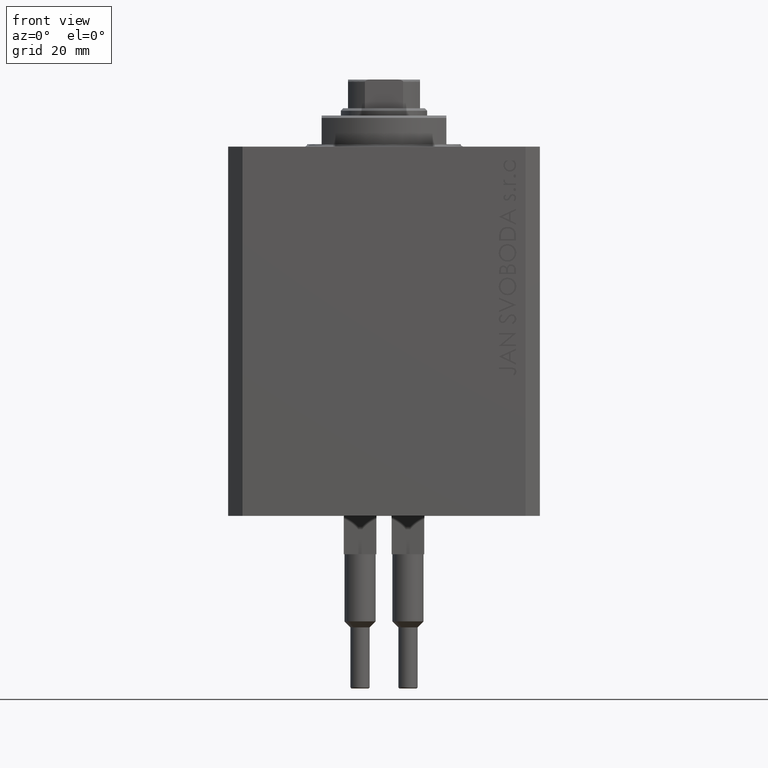
[diagram: clean part render]
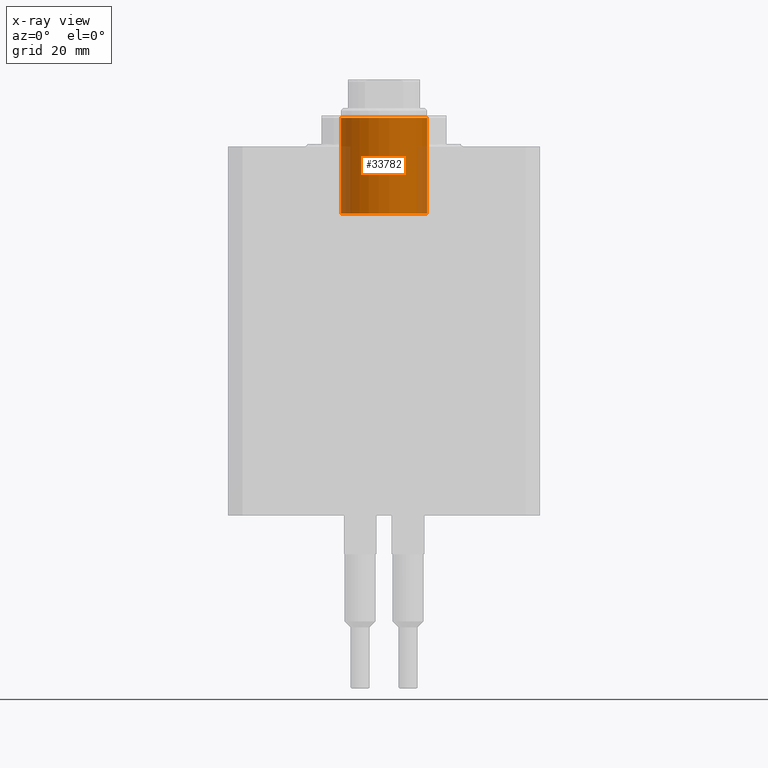
[diagram: x-ray — body ghosted, one internal face saturated and labeled with its STEP entity id]
A machine part, front view, then the same camera in x-ray: the body is ghosted and one INTERNAL B-rep face — a face not visible from any outside direction — is saturated and labeled: STEP entity #33782.
In plain terms, the highlighted cylindrical surface (partial cylindrical patch) has radius 9 mm, axis along (0, -0, 1).
Its self-contained STEP definition (entity closure, byte-faithful):
#3117 = LINE ( 'NONE', #24821, #42676 ) ;
#3484 = CARTESIAN_POINT ( 'NONE',  ( 9.000000000000000000, 1.102182119232617714E-15, -5.999999999999987566 ) ) ;
#3645 = CARTESIAN_POINT ( 'NONE',  ( -9.000000000000000000, 0.000000000000000000, 14.00000000000000178 ) ) ;
#4867 = DIRECTION ( 'NONE',  ( -1.000000000000000000, 0.000000000000000000, 0.000000000000000000 ) ) ;
#5873 = VERTEX_POINT ( 'NONE', #19109 ) ;
#6722 = AXIS2_PLACEMENT_3D ( 'NONE', #20147, #20386, #32066 ) ;
#7070 = EDGE_CURVE ( 'NONE', #15614, #8718, #45004, .T. ) ;
#7719 = EDGE_CURVE ( 'NONE', #23516, #8718, #3117, .T. ) ;
#8718 = VERTEX_POINT ( 'NONE', #20616 ) ;
#9660 = ORIENTED_EDGE ( 'NONE', *, *, #7070, .T. ) ;
#10282 = ORIENTED_EDGE ( 'NONE', *, *, #12177, .T. ) ;
#12177 = EDGE_CURVE ( 'NONE', #5873, #15614, #41277, .T. ) ;
#15614 = VERTEX_POINT ( 'NONE', #3484 ) ;
#19109 = CARTESIAN_POINT ( 'NONE',  ( 9.000000000000000000, 1.102182119232617714E-15, 14.00000000000000178 ) ) ;
#20147 = CARTESIAN_POINT ( 'NONE',  ( 0.000000000000000000, 0.000000000000000000, 14.00000000000000178 ) ) ;
#20386 = DIRECTION ( 'NONE',  ( -0.000000000000000000, -0.000000000000000000, -1.000000000000000000 ) ) ;
#20616 = CARTESIAN_POINT ( 'NONE',  ( -9.000000000000000000, 0.000000000000000000, -5.999999999999987566 ) ) ;
#23410 = DIRECTION ( 'NONE',  ( 0.000000000000000000, 0.000000000000000000, -1.000000000000000000 ) ) ;
#23516 = VERTEX_POINT ( 'NONE', #3645 ) ;
#24821 = CARTESIAN_POINT ( 'NONE',  ( -9.000000000000000000, 0.000000000000000000, 14.00000000000000178 ) ) ;
#27479 = FACE_OUTER_BOUND ( 'NONE', #32393, .T. ) ;
#28447 = CIRCLE ( 'NONE', #40980, 9.000000000000000000 ) ;
#28727 = DIRECTION ( 'NONE',  ( -0.000000000000000000, -0.000000000000000000, -1.000000000000000000 ) ) ;
#30395 = ORIENTED_EDGE ( 'NONE', *, *, #32108, .F. ) ;
#30989 = CARTESIAN_POINT ( 'NONE',  ( 0.000000000000000000, 0.000000000000000000, -5.999999999999987566 ) ) ;
#32066 = DIRECTION ( 'NONE',  ( -1.000000000000000000, 0.000000000000000000, 0.000000000000000000 ) ) ;
#32108 = EDGE_CURVE ( 'NONE', #5873, #23516, #28447, .T. ) ;
#32393 = EDGE_LOOP ( 'NONE', ( #30395, #10282, #9660, #43196 ) ) ;
#33290 = AXIS2_PLACEMENT_3D ( 'NONE', #30989, #42459, #45902 ) ;
#33782 = ADVANCED_FACE ( 'NONE', ( #27479 ), #43313, .F. ) ;
#37256 = VECTOR ( 'NONE', #45411, 1000.000000000000000 ) ;
#40980 = AXIS2_PLACEMENT_3D ( 'NONE', #41959, #23410, #4867 ) ;
#41277 = LINE ( 'NONE', #41741, #37256 ) ;
#41741 = CARTESIAN_POINT ( 'NONE',  ( 9.000000000000000000, 1.102182119232617714E-15, 14.00000000000000178 ) ) ;
#41959 = CARTESIAN_POINT ( 'NONE',  ( 0.000000000000000000, 0.000000000000000000, 14.00000000000000178 ) ) ;
#42459 = DIRECTION ( 'NONE',  ( 0.000000000000000000, 0.000000000000000000, -1.000000000000000000 ) ) ;
#42676 = VECTOR ( 'NONE', #28727, 1000.000000000000000 ) ;
#43196 = ORIENTED_EDGE ( 'NONE', *, *, #7719, .F. ) ;
#43313 = CYLINDRICAL_SURFACE ( 'NONE', #6722, 9.000000000000000000 ) ;
#45004 = CIRCLE ( 'NONE', #33290, 9.000000000000000000 ) ;
#45411 = DIRECTION ( 'NONE',  ( -0.000000000000000000, -0.000000000000000000, -1.000000000000000000 ) ) ;
#45902 = DIRECTION ( 'NONE',  ( -1.000000000000000000, 0.000000000000000000, 0.000000000000000000 ) ) ;